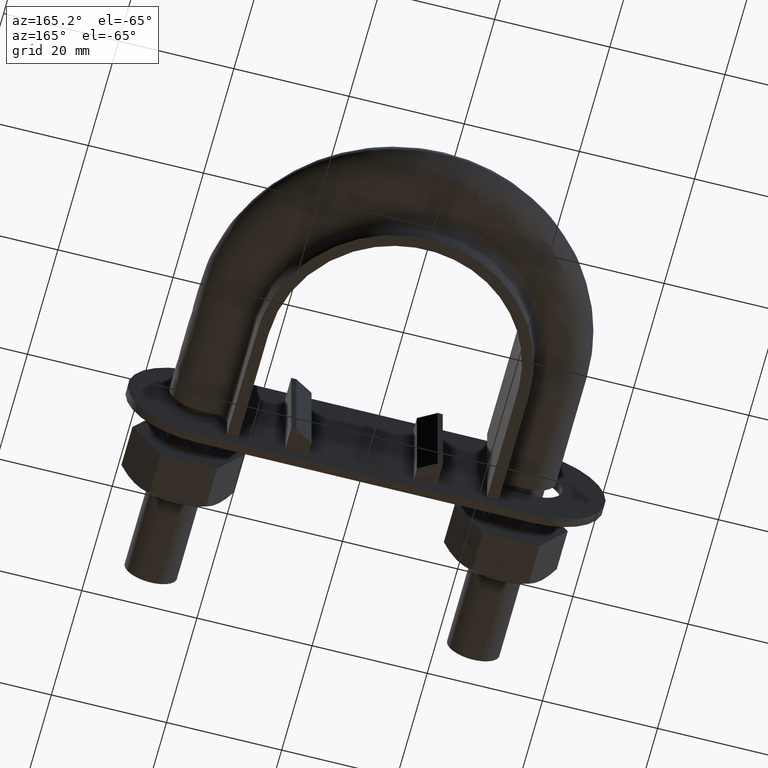
[diagram: clean part render]
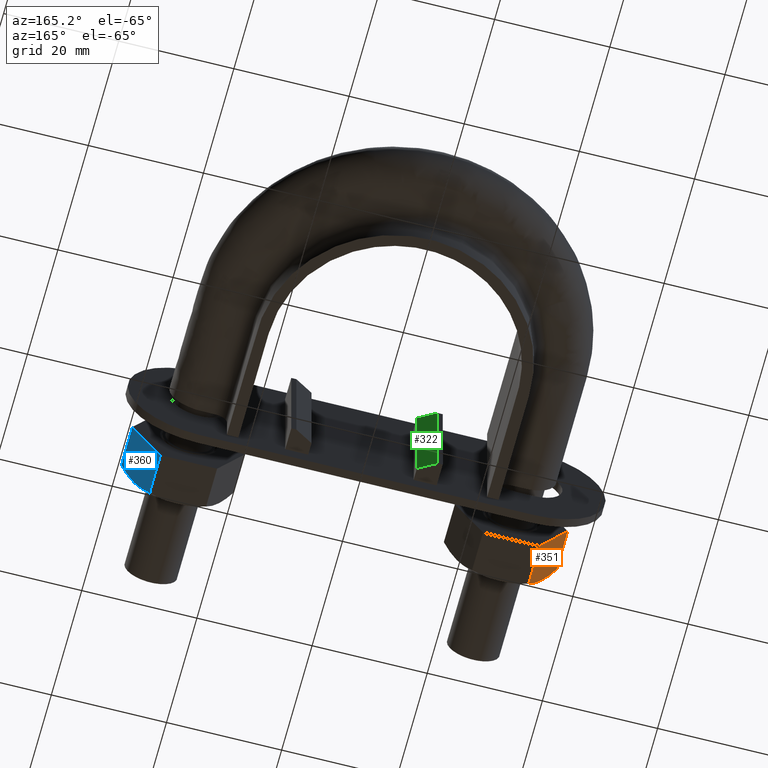
[diagram: same view with three faces highlighted in distinct colors, each labeled with its STEP entity id]
A machine part, auxiliary view with three faces highlighted in distinct colors.
Their STEP definitions:

[orange] entity #351 — the highlighted planar face has unit normal (0.866, -0, 0.5).
#351 = ADVANCED_FACE( '', ( #573 ), #574, .F. );
#573 = FACE_OUTER_BOUND( '', #1655, .T. );
#574 = PLANE( '', #1656 );
#1655 = EDGE_LOOP( '', ( #2332, #2333, #2334, #2335, #2336 ) );
#1656 = AXIS2_PLACEMENT_3D( '', #2337, #2338, #2339 );
#2332 = ORIENTED_EDGE( '', *, *, #2727, .F. );
#2333 = ORIENTED_EDGE( '', *, *, #2716, .F. );
#2334 = ORIENTED_EDGE( '', *, *, #2726, .F. );
#2335 = ORIENTED_EDGE( '', *, *, #2704, .F. );
#2336 = ORIENTED_EDGE( '', *, *, #2728, .F. );
#2337 = CARTESIAN_POINT( '', ( -32.9074772881160, 25.0000000000002, -8.49999999999777 ) );
#2338 = DIRECTION( '', ( 0.866025403784671, -2.42723201254794E-016, 0.499999999999598 ) );
#2339 = DIRECTION( '', ( -4.26983489983730E-032, -1.00000000000000, -4.85446402509978E-016 ) );
#2704 = EDGE_CURVE( '', #3053, #3055, #3056, .T. );
#2716 = EDGE_CURVE( '', #3074, #3069, #3076, .T. );
#2726 = EDGE_CURVE( '', #3055, #3074, #3087, .T. );
#2727 = EDGE_CURVE( '', #3069, #3088, #3089, .T. );
#2728 = EDGE_CURVE( '', #3088, #3053, #3090, .F. );
#3053 = VERTEX_POINT( '', #3798 );
#3055 = VERTEX_POINT( '', #3800 );
#3056 = LINE( '', #3801, #3802 );
#3069 = VERTEX_POINT( '', #3823 );
#3074 = VERTEX_POINT( '', #3833 );
#3076 = B_SPLINE_CURVE_WITH_KNOTS( '', 3, ( #3835, #3836, #3837, #3838, #3839, #3840 ), .UNSPECIFIED., .F., .F., ( 4, 2, 4 ), ( 1.19486035521136E-017, 0.00246745482903608, 0.00493490965807215 ), .UNSPECIFIED. );
#3087 = LINE( '', #3865, #3866 );
#3088 = VERTEX_POINT( '', #3867 );
#3089 = B_SPLINE_CURVE_WITH_KNOTS( '', 3, ( #3868, #3869, #3870, #3871, #3872, #3873 ), .UNSPECIFIED., .F., .F., ( 4, 2, 4 ), ( 8.67361737988404E-019, 0.00246745482903608, 0.00493490965807217 ), .UNSPECIFIED. );
#3090 = LINE( '', #3874, #3875 );
#3798 = CARTESIAN_POINT( '', ( -32.9224662525204, 25.0000000000002, -8.47403835209642 ) );
#3800 = CARTESIAN_POINT( '', ( -37.7999656118195, 25.0000000000002, -0.0259616478968023 ) );
#3801 = CARTESIAN_POINT( '', ( -37.8112159321680, 25.0000000000002, -0.00647552145168922 ) );
#3802 = VECTOR( '', #4278, 1000.00000000000 );
#3823 = CARTESIAN_POINT( '', ( -35.3612159321700, 17.0000000000002, -4.24999999999661 ) );
#3833 = CARTESIAN_POINT( '', ( -37.7999656118195, 17.7505553499467, -0.0259616478968113 ) );
#3835 = CARTESIAN_POINT( '', ( -37.7999656118195, 17.7505553499467, -0.0259616478968206 ) );
#3836 = CARTESIAN_POINT( '', ( -37.4015017855070, 17.5215585493659, -0.716121240049113 ) );
#3837 = CARTESIAN_POINT( '', ( -36.9999375200001, 17.3328582843709, -1.41165095041186 ) );
#3838 = CARTESIAN_POINT( '', ( -36.1878690560121, 17.0716504305292, -2.81819478926491 ) );
#3839 = CARTESIAN_POINT( '', ( -35.7772989072650, 17.0000000000002, -3.52932314696684 ) );
#3840 = CARTESIAN_POINT( '', ( -35.3612159321700, 17.0000000000002, -4.24999999999661 ) );
#3865 = CARTESIAN_POINT( '', ( -37.7999656118195, 25.0000000000002, -0.0259616478968010 ) );
#3866 = VECTOR( '', #4313, 1000.00000000000 );
#3867 = CARTESIAN_POINT( '', ( -32.9224662525204, 17.7505553499467, -8.47403835209641 ) );
#3868 = CARTESIAN_POINT( '', ( -35.3612159321700, 17.0000000000002, -4.24999999999661 ) );
#3869 = CARTESIAN_POINT( '', ( -34.9451329570749, 17.0000000000002, -4.97067685302639 ) );
#3870 = CARTESIAN_POINT( '', ( -34.5345628083278, 17.0716504305292, -5.68180521072832 ) );
#3871 = CARTESIAN_POINT( '', ( -33.7224943443398, 17.3328582843709, -7.08834904958138 ) );
#3872 = CARTESIAN_POINT( '', ( -33.3209300788329, 17.5215585493659, -7.78387875994411 ) );
#3873 = CARTESIAN_POINT( '', ( -32.9224662525204, 17.7505553499467, -8.47403835209640 ) );
#3874 = CARTESIAN_POINT( '', ( -32.9224662525204, 25.0000000000002, -8.47403835209642 ) );
#3875 = VECTOR( '', #4314, 1000.00000000000 );
#4278 = DIRECTION( '', ( -0.499999999999598, 6.94336247798246E-017, 0.866025403784671 ) );
#4313 = DIRECTION( '', ( -2.44921270764476E-016, -1.00000000000000, -6.12303176911188E-017 ) );
#4314 = DIRECTION( '', ( -2.44921270764476E-016, -1.00000000000000, -6.12303176911188E-017 ) );

[blue] entity #360 — the highlighted planar face has unit normal (-0.866, 0, 0.5).
#360 = ADVANCED_FACE( '', ( #593 ), #594, .F. );
#593 = FACE_OUTER_BOUND( '', #1675, .T. );
#594 = PLANE( '', #1676 );
#1675 = EDGE_LOOP( '', ( #2393, #2394, #2395, #2396, #2397 ) );
#1676 = AXIS2_PLACEMENT_3D( '', #2398, #2399, #2400 );
#2393 = ORIENTED_EDGE( '', *, *, #2745, .F. );
#2394 = ORIENTED_EDGE( '', *, *, #2746, .F. );
#2395 = ORIENTED_EDGE( '', *, *, #2744, .F. );
#2396 = ORIENTED_EDGE( '', *, *, #2747, .F. );
#2397 = ORIENTED_EDGE( '', *, *, #2748, .F. );
#2398 = CARTESIAN_POINT( '', ( 37.8149545762238, 25.0000000000002, -4.60010678743483E-012 ) );
#2399 = DIRECTION( '', ( -0.866025403784202, 1.81492883563560E-016, 0.500000000000410 ) );
#2400 = DIRECTION( '', ( 2.09569930362903E-016, 1.00000000000000, 0.000000000000000 ) );
#2744 = EDGE_CURVE( '', #3118, #3113, #3120, .T. );
#2745 = EDGE_CURVE( '', #3121, #3122, #3123, .T. );
#2746 = EDGE_CURVE( '', #3113, #3121, #3124, .T. );
#2747 = EDGE_CURVE( '', #3125, #3118, #3126, .T. );
#2748 = EDGE_CURVE( '', #3122, #3125, #3127, .F. );
#3113 = VERTEX_POINT( '', #3924 );
#3118 = VERTEX_POINT( '', #3930 );
#3120 = LINE( '', #3932, #3933 );
#3121 = VERTEX_POINT( '', #3934 );
#3122 = VERTEX_POINT( '', #3935 );
#3123 = B_SPLINE_CURVE_WITH_KNOTS( '', 3, ( #3936, #3937, #3938, #3939, #3940, #3941 ), .UNSPECIFIED., .F., .F., ( 4, 2, 4 ), ( 5.20417042793042E-018, 0.00246745482903613, 0.00493490965807226 ), .UNSPECIFIED. );
#3124 = B_SPLINE_CURVE_WITH_KNOTS( '', 3, ( #3942, #3943, #3944, #3945, #3946, #3947 ), .UNSPECIFIED., .F., .F., ( 4, 2, 4 ), ( 1.10260749017701E-016, 0.00246745482903612, 0.00493490965807214 ), .UNSPECIFIED. );
#3125 = VERTEX_POINT( '', #3948 );
#3126 = LINE( '', #3949, #3950 );
#3127 = LINE( '', #3951, #3952 );
#3924 = CARTESIAN_POINT( '', ( 32.9224662525124, 17.7505553499467, -8.47403835210105 ) );
#3930 = CARTESIAN_POINT( '', ( 32.9224662525123, 25.0000000000002, -8.47403835210115 ) );
#3932 = CARTESIAN_POINT( '', ( 32.9224662525123, 25.0000000000002, -8.47403835210114 ) );
#3933 = VECTOR( '', #4341, 1000.00000000000 );
#3934 = CARTESIAN_POINT( '', ( 35.3612159321659, 17.0000000000002, -4.25000000000349 ) );
#3935 = CARTESIAN_POINT( '', ( 37.7999656118194, 17.7505553499467, -0.0259616479058631 ) );
#3936 = CARTESIAN_POINT( '', ( 35.3612159321659, 17.0000000000001, -4.25000000000346 ) );
#3937 = CARTESIAN_POINT( '', ( 35.7772989072616, 17.0000000000001, -3.52932314697405 ) );
#3938 = CARTESIAN_POINT( '', ( 36.1878690560094, 17.0716504305292, -2.81819478927250 ) );
#3939 = CARTESIAN_POINT( '', ( 36.9999375199987, 17.3328582843708, -1.41165095042017 ) );
#3940 = CARTESIAN_POINT( '', ( 37.4015017855062, 17.5215585493658, -0.716121240057902 ) );
#3941 = CARTESIAN_POINT( '', ( 37.7999656118193, 17.7505553499466, -0.0259616479059676 ) );
#3942 = CARTESIAN_POINT( '', ( 32.9224662525124, 17.7505553499467, -8.47403835210095 ) );
#3943 = CARTESIAN_POINT( '', ( 33.3209300788255, 17.5215585493658, -7.78387875994905 ) );
#3944 = CARTESIAN_POINT( '', ( 33.7224943443331, 17.3328582843708, -7.08834904958662 ) );
#3945 = CARTESIAN_POINT( '', ( 34.5345628083224, 17.0716504305292, -5.68180521073435 ) );
#3946 = CARTESIAN_POINT( '', ( 34.9451329570702, 17.0000000000001, -4.97067685303282 ) );
#3947 = CARTESIAN_POINT( '', ( 35.3612159321659, 17.0000000000001, -4.25000000000346 ) );
#3948 = CARTESIAN_POINT( '', ( 37.7999656118194, 25.0000000000002, -0.0259616479057674 ) );
#3949 = CARTESIAN_POINT( '', ( 32.9112159321639, 25.0000000000002, -8.49352447854604 ) );
#3950 = VECTOR( '', #4342, 1000.00000000000 );
#3951 = CARTESIAN_POINT( '', ( 37.7999656118194, 25.0000000000002, -0.0259616479057704 ) );
#3952 = VECTOR( '', #4343, 1000.00000000000 );
#4341 = DIRECTION( '', ( -2.44921270764476E-016, -1.00000000000000, -6.12303176911188E-017 ) );
#4342 = DIRECTION( '', ( -0.500000000000410, 1.75487645984625E-016, -0.866025403784202 ) );
#4343 = DIRECTION( '', ( -2.44921270764476E-016, -1.00000000000000, -6.12303176911188E-017 ) );

[green] entity #322 — the highlighted planar face has unit normal (0.5, 0.866, -0).
#322 = ADVANCED_FACE( '', ( #510 ), #511, .T. );
#510 = FACE_OUTER_BOUND( '', #1592, .T. );
#511 = PLANE( '', #1593 );
#1592 = EDGE_LOOP( '', ( #2118, #2119, #2120, #2121 ) );
#1593 = AXIS2_PLACEMENT_3D( '', #2122, #2123, #2124 );
#2118 = ORIENTED_EDGE( '', *, *, #2675, .F. );
#2119 = ORIENTED_EDGE( '', *, *, #2676, .F. );
#2120 = ORIENTED_EDGE( '', *, *, #2673, .T. );
#2121 = ORIENTED_EDGE( '', *, *, #2671, .T. );
#2122 = CARTESIAN_POINT( '', ( -9.15000000000461, 34.3000000000002, -9.99999999999574 ) );
#2123 = DIRECTION( '', ( 0.500000000000010, 0.866025403784433, -2.35121013022263E-013 ) );
#2124 = DIRECTION( '', ( -4.70242026044517E-013, 0.000000000000000, -1.00000000000000 ) );
#2671 = EDGE_CURVE( '', #2997, #2995, #2998, .T. );
#2673 = EDGE_CURVE( '', #3000, #2997, #3001, .T. );
#2675 = EDGE_CURVE( '', #3003, #2995, #3004, .T. );
#2676 = EDGE_CURVE( '', #3000, #3003, #3005, .T. );
#2995 = VERTEX_POINT( '', #3698 );
#2997 = VERTEX_POINT( '', #3701 );
#2998 = LINE( '', #3702, #3703 );
#3000 = VERTEX_POINT( '', #3706 );
#3001 = LINE( '', #3707, #3708 );
#3003 = VERTEX_POINT( '', #3711 );
#3004 = LINE( '', #3712, #3713 );
#3005 = LINE( '', #3714, #3715 );
#3698 = CARTESIAN_POINT( '', ( -12.2676914536190, 36.1000000000001, 10.0000000000057 ) );
#3701 = CARTESIAN_POINT( '', ( -12.2676914536284, 36.1000000000001, -9.99999999999427 ) );
#3702 = CARTESIAN_POINT( '', ( -12.2676914536284, 36.1000000000001, -9.99999999999427 ) );
#3703 = VECTOR( '', #4226, 1000.00000000000 );
#3706 = CARTESIAN_POINT( '', ( -9.15000000000462, 34.3000000000002, -9.99999999999574 ) );
#3707 = CARTESIAN_POINT( '', ( -9.15000000000461, 34.3000000000002, -9.99999999999574 ) );
#3708 = VECTOR( '', #4228, 1000.00000000000 );
#3711 = CARTESIAN_POINT( '', ( -9.14999999999524, 34.3000000000002, 10.0000000000043 ) );
#3712 = CARTESIAN_POINT( '', ( -9.14999999999524, 34.3000000000002, 10.0000000000043 ) );
#3713 = VECTOR( '', #4230, 1000.00000000000 );
#3714 = CARTESIAN_POINT( '', ( -9.15000000000462, 34.3000000000002, -9.99999999999574 ) );
#3715 = VECTOR( '', #4231, 1000.00000000000 );
#4226 = DIRECTION( '', ( 4.68591535819692E-013, 9.52910975597184E-016, 1.00000000000000 ) );
#4228 = DIRECTION( '', ( -0.866025403784433, 0.500000000000010, 4.05510388116537E-013 ) );
#4230 = DIRECTION( '', ( -0.866025403784433, 0.500000000000010, 4.05510388116537E-013 ) );
#4231 = DIRECTION( '', ( 4.68591535819692E-013, 9.52910975597184E-016, 1.00000000000000 ) );